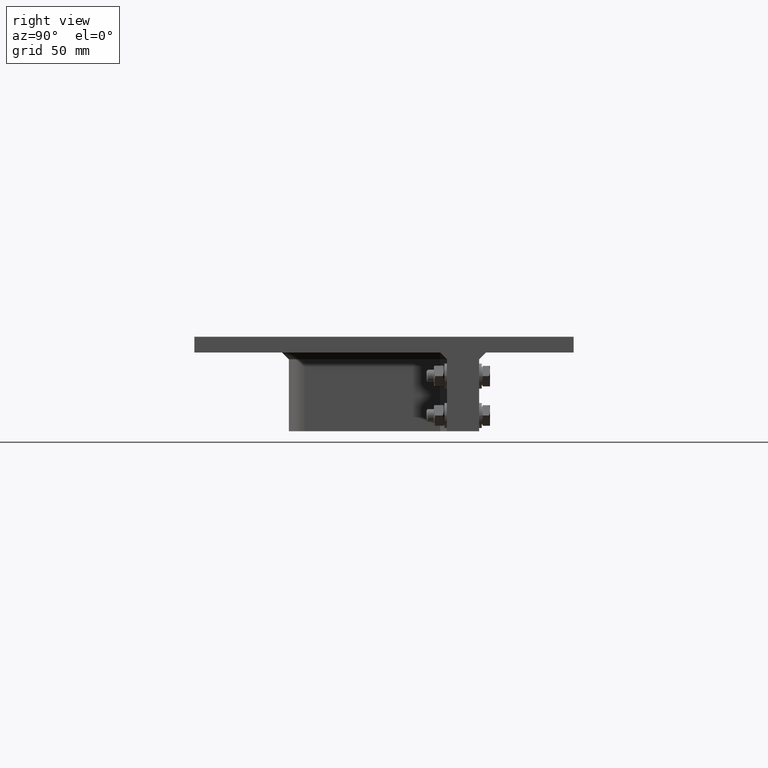
[diagram: clean part render]
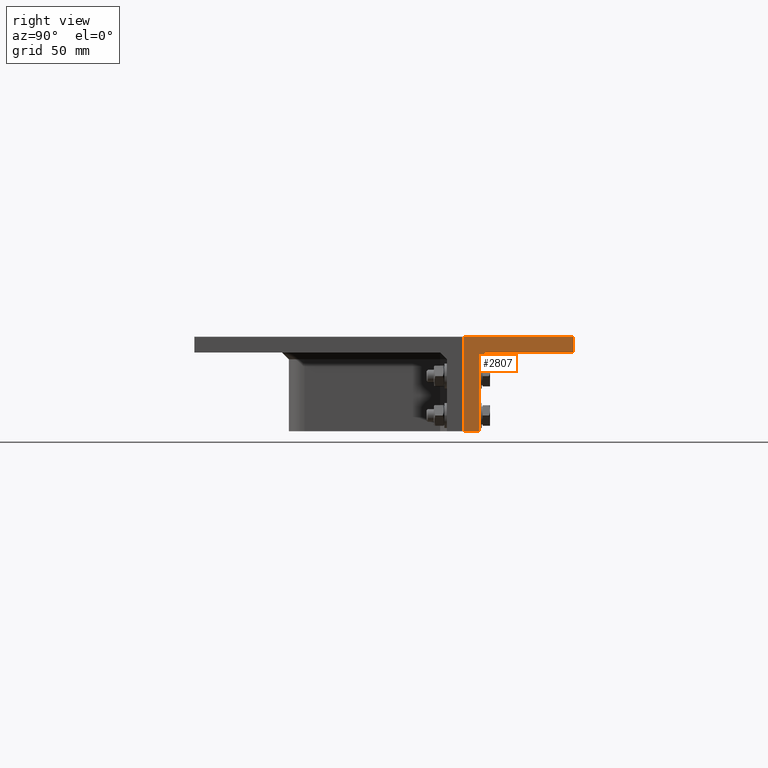
[diagram: same view with one face highlighted and labeled with its STEP entity id]
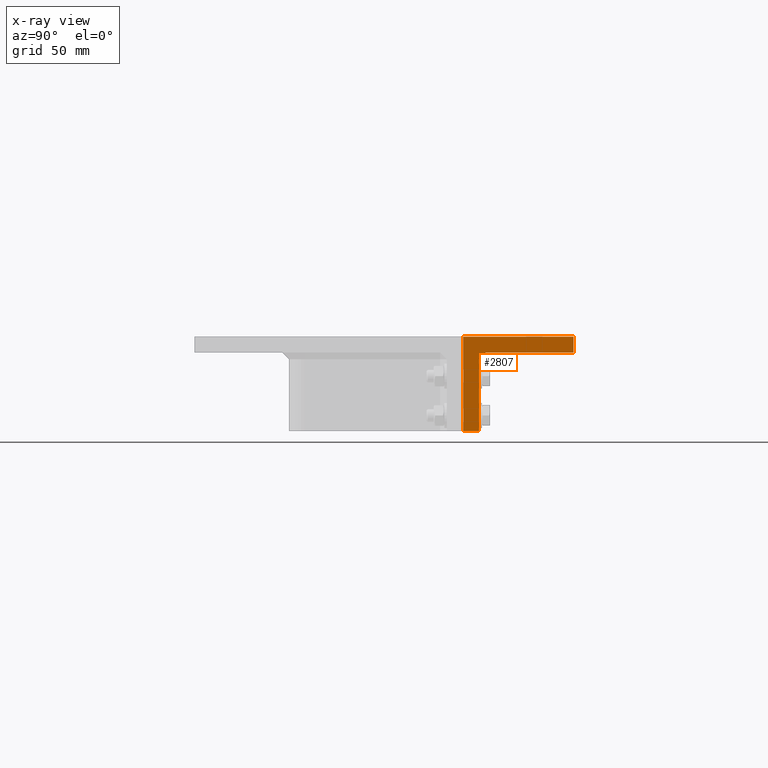
[diagram: x-ray of the same camera — body ghosted, the highlighted face saturated]
A machine part, right view. The second image highlights one B-rep face of the part: STEP entity #2807.
The next image is the same camera in x-ray: the body ghosted, the highlighted face saturated — about 0% of this face is hidden behind the body in this view.
In plain terms, the highlighted planar face has unit normal (1, 0, 0).
Its self-contained STEP definition (entity closure, byte-faithful):
#512=FACE_OUTER_BOUND('',#713,.T.);
#713=EDGE_LOOP('',(#2237,#2238,#2239,#2240,#2241,#2242,#2243));
#943=LINE('',#4539,#1162);
#947=LINE('',#4547,#1166);
#960=LINE('',#4614,#1179);
#964=LINE('',#4630,#1183);
#965=LINE('',#4631,#1184);
#966=LINE('',#4633,#1185);
#967=LINE('',#4634,#1186);
#1162=VECTOR('',#3705,10.);
#1166=VECTOR('',#3711,10.);
#1179=VECTOR('',#3786,10.);
#1183=VECTOR('',#3800,10.);
#1184=VECTOR('',#3801,10.);
#1185=VECTOR('',#3802,10.);
#1186=VECTOR('',#3803,10.);
#1372=VERTEX_POINT('',#4537);
#1373=VERTEX_POINT('',#4538);
#1376=VERTEX_POINT('',#4546);
#1398=VERTEX_POINT('',#4612);
#1399=VERTEX_POINT('',#4613);
#1406=VERTEX_POINT('',#4629);
#1407=VERTEX_POINT('',#4632);
#1662=EDGE_CURVE('',#1372,#1373,#943,.T.);
#1666=EDGE_CURVE('',#1373,#1376,#947,.T.);
#1699=EDGE_CURVE('',#1398,#1399,#960,.T.);
#1707=EDGE_CURVE('',#1406,#1372,#964,.T.);
#1708=EDGE_CURVE('',#1399,#1406,#965,.T.);
#1709=EDGE_CURVE('',#1398,#1407,#966,.T.);
#1710=EDGE_CURVE('',#1376,#1407,#967,.T.);
#2237=ORIENTED_EDGE('',*,*,#1707,.F.);
#2238=ORIENTED_EDGE('',*,*,#1708,.F.);
#2239=ORIENTED_EDGE('',*,*,#1699,.F.);
#2240=ORIENTED_EDGE('',*,*,#1709,.T.);
#2241=ORIENTED_EDGE('',*,*,#1710,.F.);
#2242=ORIENTED_EDGE('',*,*,#1666,.F.);
#2243=ORIENTED_EDGE('',*,*,#1662,.F.);
#2689=PLANE('',#3243);
#2807=ADVANCED_FACE('',(#512),#2689,.T.);
#3243=AXIS2_PLACEMENT_3D('',#4628,#3798,#3799);
#3705=DIRECTION('',(0.,-0.707106781186531,-0.707106781186564));
#3711=DIRECTION('',(0.,0.,-1.));
#3786=DIRECTION('',(0.,1.,0.));
#3798=DIRECTION('center_axis',(1.,0.,0.));
#3799=DIRECTION('ref_axis',(0.,-1.,0.));
#3800=DIRECTION('',(0.,-1.,0.));
#3801=DIRECTION('',(0.,0.,-1.));
#3802=DIRECTION('',(0.,0.,-1.));
#3803=DIRECTION('',(0.,-1.,0.));
#4537=CARTESIAN_POINT('',(196.5,64.8,-10.));
#4538=CARTESIAN_POINT('',(196.5,60.5,-14.3));
#4539=CARTESIAN_POINT('',(196.5,80.1499999999995,5.35000000000015));
#4546=CARTESIAN_POINT('',(196.5,60.5,-60.));
#4547=CARTESIAN_POINT('',(196.5,60.5,0.));
#4612=CARTESIAN_POINT('',(196.5,50.5,0.));
#4613=CARTESIAN_POINT('',(196.5,120.5,0.));
#4614=CARTESIAN_POINT('',(196.5,-120.5,0.));
#4628=CARTESIAN_POINT('Origin',(196.5,120.5,0.));
#4629=CARTESIAN_POINT('',(196.5,120.5,-10.));
#4630=CARTESIAN_POINT('',(196.5,-120.5,-10.));
#4631=CARTESIAN_POINT('',(196.5,120.5,0.));
#4632=CARTESIAN_POINT('',(196.5,50.5,-60.));
#4633=CARTESIAN_POINT('',(196.5,50.5,0.));
#4634=CARTESIAN_POINT('',(196.5,60.5,-60.));